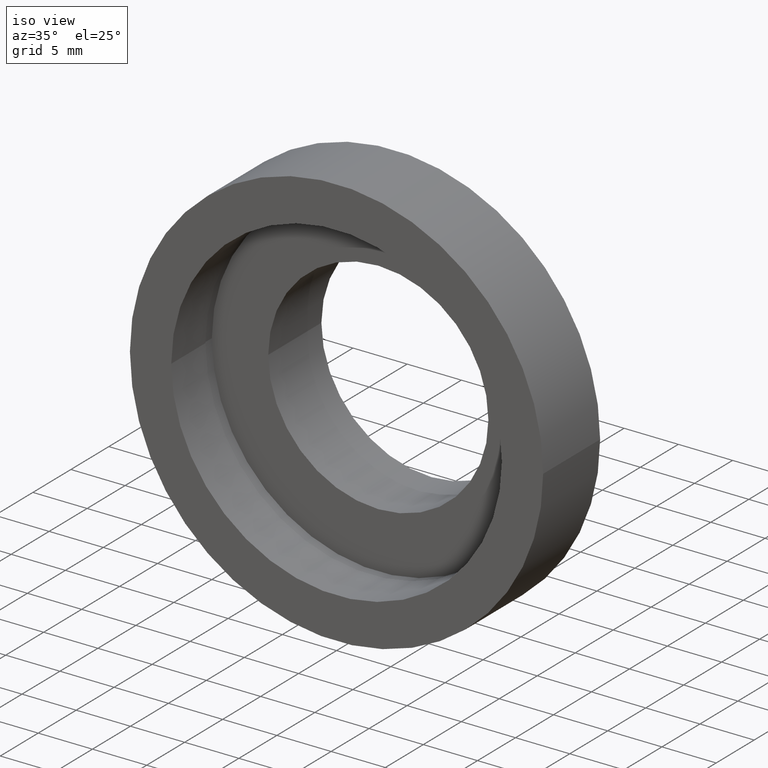
[diagram: clean part render]
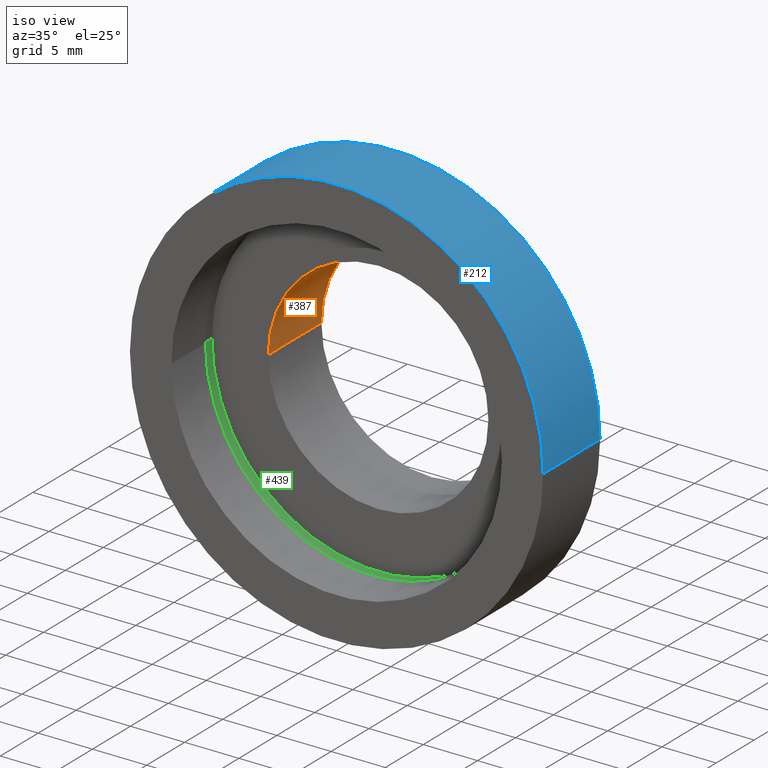
[diagram: same view with three faces highlighted in distinct colors, each labeled with its STEP entity id]
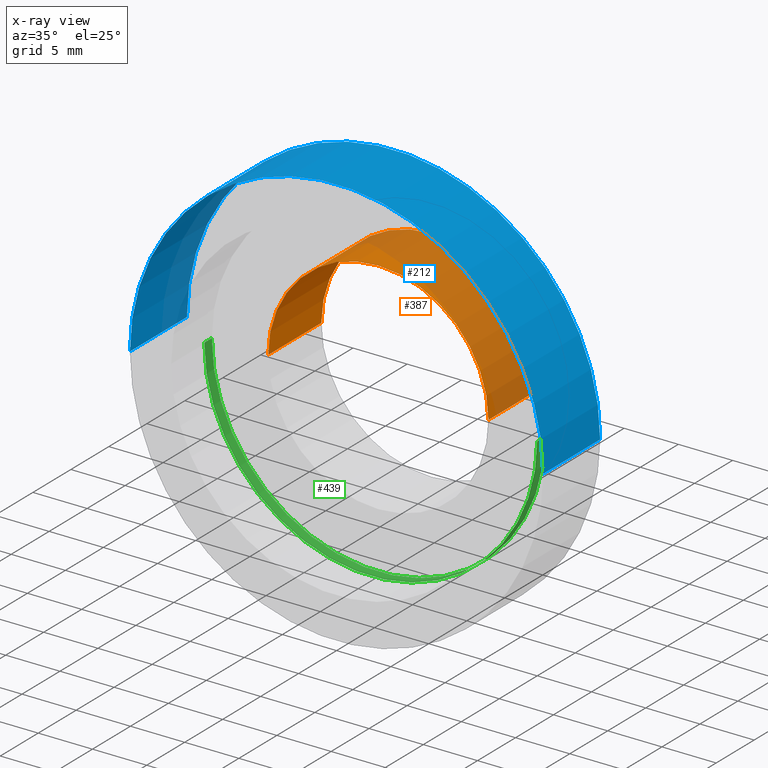
[diagram: x-ray of the same camera — body ghosted, the three highlighted faces saturated]
A machine part, iso view with three faces highlighted in distinct colors.
The next image is the same camera in x-ray (body ghosted, the three faces saturated) — at least one of them is partly hidden behind the body in this view.
Their STEP definitions:

[orange] entity #387 — the highlighted cylindrical surface (partial cylindrical patch) has radius 10.15 mm, axis along (-0, 1, -0).
#1 = VECTOR ( 'NONE', #292, 1000.000000000000000 ) ;
#5 = ORIENTED_EDGE ( 'NONE', *, *, #62, .F. ) ;
#13 = VERTEX_POINT ( 'NONE', #523 ) ;
#26 = DIRECTION ( 'NONE',  ( -1.000000000000000000, -1.709087168450056200E-016, 0.0000000000000000000 ) ) ;
#46 = CYLINDRICAL_SURFACE ( 'NONE', #153, 10.14999999999999900 ) ;
#54 = VECTOR ( 'NONE', #176, 1000.000000000000000 ) ;
#62 = EDGE_CURVE ( 'NONE', #214, #334, #267, .T. ) ;
#120 = CARTESIAN_POINT ( 'NONE',  ( 10.15000000000000000, 5.499999999999997300, 1.243016501134563700E-015 ) ) ;
#128 = CARTESIAN_POINT ( 'NONE',  ( -10.14999999999999900, 16.88601823708207700, 0.0000000000000000000 ) ) ;
#134 = CARTESIAN_POINT ( 'NONE',  ( -10.15000000000000000, 12.49999999999999500, 0.0000000000000000000 ) ) ;
#136 = CARTESIAN_POINT ( 'NONE',  ( 5.371323195044473300E-016, 12.49999999999999600, 0.0000000000000000000 ) ) ;
#153 = AXIS2_PLACEMENT_3D ( 'NONE', #555, #606, #367 ) ;
#169 = VERTEX_POINT ( 'NONE', #134 ) ;
#176 = DIRECTION ( 'NONE',  ( -1.224646799147351000E-016, 1.000000000000000000, -0.0000000000000000000 ) ) ;
#214 = VERTEX_POINT ( 'NONE', #120 ) ;
#258 = CIRCLE ( 'NONE', #466, 10.15000000000000000 ) ;
#264 = CIRCLE ( 'NONE', #591, 10.14999999999999900 ) ;
#267 = LINE ( 'NONE', #578, #1 ) ;
#269 = DIRECTION ( 'NONE',  ( -1.224646799147351000E-016, 1.000000000000000000, -0.0000000000000000000 ) ) ;
#292 = DIRECTION ( 'NONE',  ( -1.224646799147351000E-016, 1.000000000000000000, -0.0000000000000000000 ) ) ;
#308 = EDGE_CURVE ( 'NONE', #13, #169, #553, .T. ) ;
#334 = VERTEX_POINT ( 'NONE', #531 ) ;
#336 = ORIENTED_EDGE ( 'NONE', *, *, #308, .T. ) ;
#366 = DIRECTION ( 'NONE',  ( -1.000000000000000000, -8.545435842250282200E-017, 0.0000000000000000000 ) ) ;
#367 = DIRECTION ( 'NONE',  ( -1.000000000000000000, 0.0000000000000000000, 0.0000000000000000000 ) ) ;
#386 = FACE_OUTER_BOUND ( 'NONE', #550, .T. ) ;
#387 = ADVANCED_FACE ( 'NONE', ( #386 ), #46, .F. ) ;
#414 = DIRECTION ( 'NONE',  ( -1.224646799147351000E-016, 1.000000000000000000, -0.0000000000000000000 ) ) ;
#424 = ORIENTED_EDGE ( 'NONE', *, *, #438, .T. ) ;
#438 = EDGE_CURVE ( 'NONE', #169, #334, #258, .T. ) ;
#466 = AXIS2_PLACEMENT_3D ( 'NONE', #136, #269, #26 ) ;
#467 = EDGE_CURVE ( 'NONE', #13, #214, #264, .T. ) ;
#502 = ORIENTED_EDGE ( 'NONE', *, *, #467, .F. ) ;
#523 = CARTESIAN_POINT ( 'NONE',  ( -10.14999999999999700, 5.499999999999995600, 0.0000000000000000000 ) ) ;
#531 = CARTESIAN_POINT ( 'NONE',  ( 10.15000000000000000, 12.49999999999999800, 1.243016501134563700E-015 ) ) ;
#550 = EDGE_LOOP ( 'NONE', ( #5, #502, #336, #424 ) ) ;
#553 = LINE ( 'NONE', #128, #54 ) ;
#555 = CARTESIAN_POINT ( 'NONE',  ( 0.0000000000000000000, 16.88601823708207700, 0.0000000000000000000 ) ) ;
#578 = CARTESIAN_POINT ( 'NONE',  ( 10.14999999999999900, 16.88601823708207700, 1.243016501134563500E-015 ) ) ;
#591 = AXIS2_PLACEMENT_3D ( 'NONE', #602, #414, #366 ) ;
#602 = CARTESIAN_POINT ( 'NONE',  ( 1.394385078907593200E-015, 5.499999999999996400, 0.0000000000000000000 ) ) ;
#606 = DIRECTION ( 'NONE',  ( -1.224646799147351000E-016, 1.000000000000000000, -0.0000000000000000000 ) ) ;

[blue] entity #212 — the highlighted cylindrical surface (partial cylindrical patch) has radius 19.05 mm, axis along (-0, 1, -0).
#8 = CYLINDRICAL_SURFACE ( 'NONE', #90, 19.05000000000000400 ) ;
#9 = CIRCLE ( 'NONE', #465, 19.05000000000000400 ) ;
#36 = DIRECTION ( 'NONE',  ( -1.224646799147351000E-016, 1.000000000000000000, -0.0000000000000000000 ) ) ;
#38 = CARTESIAN_POINT ( 'NONE',  ( 19.05000000000000400, -1.136494799577910300E-015, 2.332952152375708400E-015 ) ) ;
#66 = LINE ( 'NONE', #111, #500 ) ;
#90 = AXIS2_PLACEMENT_3D ( 'NONE', #260, #259, #164 ) ;
#93 = AXIS2_PLACEMENT_3D ( 'NONE', #179, #318, #462 ) ;
#111 = CARTESIAN_POINT ( 'NONE',  ( 19.05000000000000400, 16.88601823708208000, 2.332952152375708400E-015 ) ) ;
#117 = CARTESIAN_POINT ( 'NONE',  ( -19.05000000000000400, 16.88601823708207300, 0.0000000000000000000 ) ) ;
#124 = EDGE_CURVE ( 'NONE', #554, #261, #9, .T. ) ;
#126 = CARTESIAN_POINT ( 'NONE',  ( 19.05000000000000400, 7.499999999999999100, 2.332952152375708400E-015 ) ) ;
#138 = DIRECTION ( 'NONE',  ( -1.000000000000000000, -1.365923996832131400E-016, 0.0000000000000000000 ) ) ;
#158 = ORIENTED_EDGE ( 'NONE', *, *, #417, .T. ) ;
#159 = DIRECTION ( 'NONE',  ( -1.224646799147351000E-016, 1.000000000000000000, -0.0000000000000000000 ) ) ;
#164 = DIRECTION ( 'NONE',  ( -1.000000000000000000, -1.821231995776175000E-016, 0.0000000000000000000 ) ) ;
#179 = CARTESIAN_POINT ( 'NONE',  ( 2.067940818438636500E-015, -3.469446951953614200E-015, 0.0000000000000000000 ) ) ;
#212 = ADVANCED_FACE ( 'NONE', ( #566 ), #8, .T. ) ;
#250 = EDGE_CURVE ( 'NONE', #512, #554, #545, .T. ) ;
#259 = DIRECTION ( 'NONE',  ( -1.224646799147351000E-016, 1.000000000000000000, -0.0000000000000000000 ) ) ;
#260 = CARTESIAN_POINT ( 'NONE',  ( 0.0000000000000000000, 16.88601823708207700, 0.0000000000000000000 ) ) ;
#261 = VERTEX_POINT ( 'NONE', #126 ) ;
#316 = CIRCLE ( 'NONE', #93, 19.05000000000000100 ) ;
#318 = DIRECTION ( 'NONE',  ( -1.224646799147351000E-016, 1.000000000000000000, -0.0000000000000000000 ) ) ;
#320 = ORIENTED_EDGE ( 'NONE', *, *, #321, .T. ) ;
#321 = EDGE_CURVE ( 'NONE', #484, #261, #66, .T. ) ;
#330 = CARTESIAN_POINT ( 'NONE',  ( -19.04999999999999700, -5.802399104329318300E-015, 0.0000000000000000000 ) ) ;
#351 = ORIENTED_EDGE ( 'NONE', *, *, #124, .F. ) ;
#374 = ORIENTED_EDGE ( 'NONE', *, *, #250, .F. ) ;
#417 = EDGE_CURVE ( 'NONE', #512, #484, #316, .T. ) ;
#462 = DIRECTION ( 'NONE',  ( -1.000000000000000000, -1.224646799147351200E-016, 0.0000000000000000000 ) ) ;
#465 = AXIS2_PLACEMENT_3D ( 'NONE', #497, #36, #138 ) ;
#468 = CARTESIAN_POINT ( 'NONE',  ( -19.05000000000000400, 7.499999999999993800, 0.0000000000000000000 ) ) ;
#471 = EDGE_LOOP ( 'NONE', ( #158, #320, #351, #374 ) ) ;
#484 = VERTEX_POINT ( 'NONE', #38 ) ;
#497 = CARTESIAN_POINT ( 'NONE',  ( 1.149455719078123100E-015, 7.499999999999996400, 0.0000000000000000000 ) ) ;
#500 = VECTOR ( 'NONE', #159, 1000.000000000000000 ) ;
#512 = VERTEX_POINT ( 'NONE', #330 ) ;
#545 = LINE ( 'NONE', #117, #617 ) ;
#554 = VERTEX_POINT ( 'NONE', #468 ) ;
#566 = FACE_OUTER_BOUND ( 'NONE', #471, .T. ) ;
#586 = DIRECTION ( 'NONE',  ( -1.224646799147351000E-016, 1.000000000000000000, -0.0000000000000000000 ) ) ;
#617 = VECTOR ( 'NONE', #586, 1000.000000000000000 ) ;

[green] entity #439 — the highlighted cylindrical surface (partial cylindrical patch) has radius 15.35 mm, axis along (-0, 1, -0).
#33 = CARTESIAN_POINT ( 'NONE',  ( 15.34999999999999800, 16.88601823708208000, 1.879832836691187100E-015 ) ) ;
#91 = VERTEX_POINT ( 'NONE', #291 ) ;
#106 = CIRCLE ( 'NONE', #560, 15.34999999999999800 ) ;
#125 = DIRECTION ( 'NONE',  ( -1.224646799147351000E-016, 1.000000000000000000, -0.0000000000000000000 ) ) ;
#129 = CYLINDRICAL_SURFACE ( 'NONE', #304, 15.34999999999999800 ) ;
#135 = VERTEX_POINT ( 'NONE', #572 ) ;
#161 = VECTOR ( 'NONE', #496, 1000.000000000000000 ) ;
#166 = FACE_OUTER_BOUND ( 'NONE', #286, .T. ) ;
#201 = LINE ( 'NONE', #609, #544 ) ;
#207 = DIRECTION ( 'NONE',  ( -1.224646799147351000E-016, 1.000000000000000000, -0.0000000000000000000 ) ) ;
#215 = VERTEX_POINT ( 'NONE', #589 ) ;
#219 = ORIENTED_EDGE ( 'NONE', *, *, #450, .F. ) ;
#224 = EDGE_CURVE ( 'NONE', #135, #519, #422, .T. ) ;
#235 = DIRECTION ( 'NONE',  ( -1.000000000000000000, -2.260226027331345300E-016, 0.0000000000000000000 ) ) ;
#286 = EDGE_LOOP ( 'NONE', ( #312, #432, #317, #219 ) ) ;
#291 = CARTESIAN_POINT ( 'NONE',  ( -15.34999999999999600, 5.499999999999994700, 0.0000000000000000000 ) ) ;
#304 = AXIS2_PLACEMENT_3D ( 'NONE', #313, #409, #235 ) ;
#312 = ORIENTED_EDGE ( 'NONE', *, *, #224, .F. ) ;
#313 = CARTESIAN_POINT ( 'NONE',  ( 0.0000000000000000000, 16.88601823708207700, 0.0000000000000000000 ) ) ;
#317 = ORIENTED_EDGE ( 'NONE', *, *, #610, .T. ) ;
#335 = DIRECTION ( 'NONE',  ( -1.000000000000000000, -1.130113013665672600E-016, 0.0000000000000000000 ) ) ;
#359 = CARTESIAN_POINT ( 'NONE',  ( 1.516849758822328300E-015, 4.499999999999997300, 0.0000000000000000000 ) ) ;
#361 = DIRECTION ( 'NONE',  ( -1.224646799147351000E-016, 1.000000000000000000, -0.0000000000000000000 ) ) ;
#363 = LINE ( 'NONE', #33, #161 ) ;
#375 = EDGE_CURVE ( 'NONE', #135, #215, #363, .T. ) ;
#409 = DIRECTION ( 'NONE',  ( -1.224646799147351000E-016, 1.000000000000000000, -0.0000000000000000000 ) ) ;
#422 = CIRCLE ( 'NONE', #434, 15.34999999999999800 ) ;
#432 = ORIENTED_EDGE ( 'NONE', *, *, #375, .T. ) ;
#434 = AXIS2_PLACEMENT_3D ( 'NONE', #359, #125, #452 ) ;
#439 = ADVANCED_FACE ( 'NONE', ( #166 ), #129, .F. ) ;
#450 = EDGE_CURVE ( 'NONE', #519, #91, #201, .T. ) ;
#452 = DIRECTION ( 'NONE',  ( -1.000000000000000000, -1.130113013665672600E-016, 0.0000000000000000000 ) ) ;
#496 = DIRECTION ( 'NONE',  ( -1.224646799147351000E-016, 1.000000000000000000, -0.0000000000000000000 ) ) ;
#519 = VERTEX_POINT ( 'NONE', #561 ) ;
#544 = VECTOR ( 'NONE', #361, 1000.000000000000000 ) ;
#560 = AXIS2_PLACEMENT_3D ( 'NONE', #571, #207, #335 ) ;
#561 = CARTESIAN_POINT ( 'NONE',  ( -15.34999999999999600, 4.499999999999995600, 0.0000000000000000000 ) ) ;
#571 = CARTESIAN_POINT ( 'NONE',  ( 1.394385078907593200E-015, 5.499999999999996400, 0.0000000000000000000 ) ) ;
#572 = CARTESIAN_POINT ( 'NONE',  ( 15.35000000000000000, 4.499999999999999100, 1.879832836691187100E-015 ) ) ;
#589 = CARTESIAN_POINT ( 'NONE',  ( 15.35000000000000000, 5.499999999999998200, 1.879832836691187100E-015 ) ) ;
#609 = CARTESIAN_POINT ( 'NONE',  ( -15.34999999999999800, 16.88601823708207300, 0.0000000000000000000 ) ) ;
#610 = EDGE_CURVE ( 'NONE', #215, #91, #106, .T. ) ;